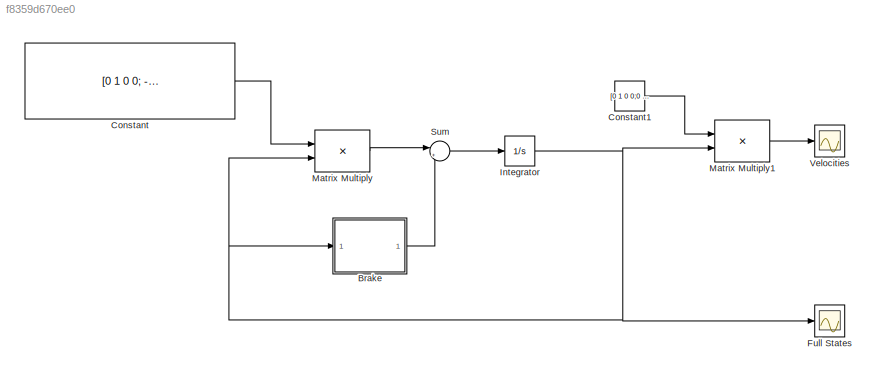
MODEL slx_f8359d670ee0
KIND model
CONFIG AbsTol = auto
CONFIG EnableMultiTasking = off
CONFIG FixedStep = auto
CONFIG MaxStep = 1e-3
CONFIG MinStep = auto
CONFIG RelTol = 2e-3
CONFIG SampleTimeConstraint = Unconstrained
CONFIG Solver = ode45
CONFIG SolverName = ode45
CONFIG StartTime = 0.0
CONFIG StopTime = 4
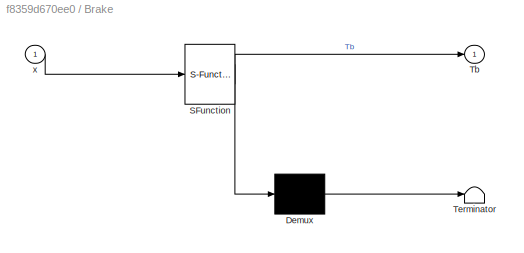
BLOCK [SubSystem] Brake
  ErrorFcn = Stateflow.Translate.translate
  PermitHierarchicalResolution = ExplicitOnly
  Ports = [1, 1]
  RequestExecContextInheritance = off
  SFBlockType = MATLAB Function
  TreatAsAtomicUnit = on
  Variant = off
BLOCK [Demux] Brake/ Demux 
  Outputs = 1
  Ports = [1, 1]
BLOCK [S-Function] Brake/ SFunction 
  EnableBusSupport = on
  FunctionName = sf_sfun
  Parameters = J2,Tbrake,k
  PortCounts = [1 2]
  Ports = [1, 2]
  SFcnIsStateOwnerBlock = off
  SFunctionDeploymentMode = off
  Tag = Stateflow S-Function Ex2_5 2
BLOCK [Terminator] Brake/ Terminator 
BLOCK [Outport] Brake/Tb
  IconDisplay = Port number
BLOCK [Inport] Brake/x
  IconDisplay = Port number
BLOCK [Constant] Constant
  Value = [0 1 0 0; -k/J1 0 k/J1 0; 0 0 0 1; k/J2 0 -k/J2 0]
BLOCK [Constant] Constant1
  Value = [0 1 0 0;0 0 0 1]
BLOCK [Scope] Full States
  NumInputPorts = 1
  Ports = [1]
  ScopeSpecificationString = Simulink.scopes.TimeScopeBlockCfg('CurrentConfiguration', extmgr.ConfigurationSet(extmgr.Configuration('Core','General UI',true),extmgr.Configuration('Core','Source UI',true),extmgr.Configuration('Sources','WiredSimulink',true,'DataLoggingVariableName','ScopeData1','DataLoggingLimitDataPoints',true,'DataLoggingSaveFormat','Array','DataLoggingDecimation','1','DataLoggingDecimateData',true),extmgr.C...<+1634ch>
BLOCK [Integrator] Integrator
  InitialCondition = [0;w1_0;0;w2_0]
  Ports = [1, 1]
BLOCK [Product] Matrix Multiply
  InputSameDT = off
  Multiplication = Matrix(*)
  OutDataTypeStr = Inherit: Inherit via internal rule
  Ports = [2, 1]
  RndMeth = Floor
  SaturateOnIntegerOverflow = off
BLOCK [Product] Matrix Multiply1
  InputSameDT = off
  Multiplication = Matrix(*)
  OutDataTypeStr = Inherit: Inherit via internal rule
  Ports = [2, 1]
  RndMeth = Floor
  SaturateOnIntegerOverflow = off
BLOCK [Sum] Sum
  IconShape = round
  InputSameDT = off
  Inputs = |++
  OutDataTypeStr = Inherit: Inherit via internal rule
  Ports = [2, 1]
  SaturateOnIntegerOverflow = off
BLOCK [Scope] Velocities 
  NumInputPorts = 1
  Ports = [1]
  ScopeSpecificationString = Simulink.scopes.TimeScopeBlockCfg('CurrentConfiguration', extmgr.ConfigurationSet(extmgr.Configuration('Core','General UI',true),extmgr.Configuration('Core','Source UI',true),extmgr.Configuration('Sources','WiredSimulink',true),extmgr.Configuration('Visuals','Time Domain',true,'SerializedDisplays',{struct('MinYLimReal','-0.69918','MaxYLimReal','4.88547','YLabelReal','','MinYLimMag','0.00000','MaxY...<+1814ch>
LINE Brake:1 -> Sum:2
LINE Constant1:1 -> Matrix Multiply1:1
LINE Constant:1 -> Matrix Multiply:1
NET Integrator:1 -> Brake:1, Full States:1, Matrix Multiply1:2, Matrix Multiply:2
LINE Matrix Multiply1:1 -> Velocities :1
LINE Matrix Multiply:1 -> Sum:1
LINE Sum:1 -> Integrator:1
note: NET lines group one-source signal fan-out (src -> all destinations, sorted); 1:1 wires keep LINE
CHART Brake states=1 transitions=1
  STATE_LABEL 'eML_blk_kernel()'
  STATE_LABEL 'SCRIPT:\nfunction Tb = fcn(x,Tbrake, J2,k)\nw2 = x(4); \nTb = zeros(4,1);\nT2 = abs(k*(x(1)-x(3)));\nif w2 > 0.001\n    Tb(4) = -Tbrake/J2;\nelseif w2 < 0.001 \n    Tb(4) = Tbrake/J2;\nelse\n    Tb(4) = -sign(T2)*min(Tbrake,abs(T2) );\nend\n\n\n'
